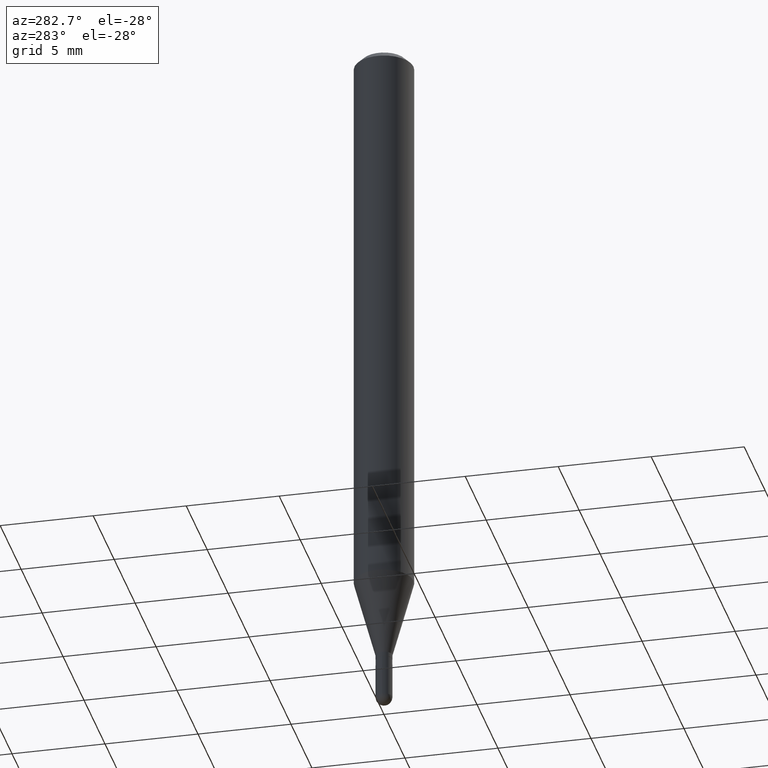
[diagram: clean part render]
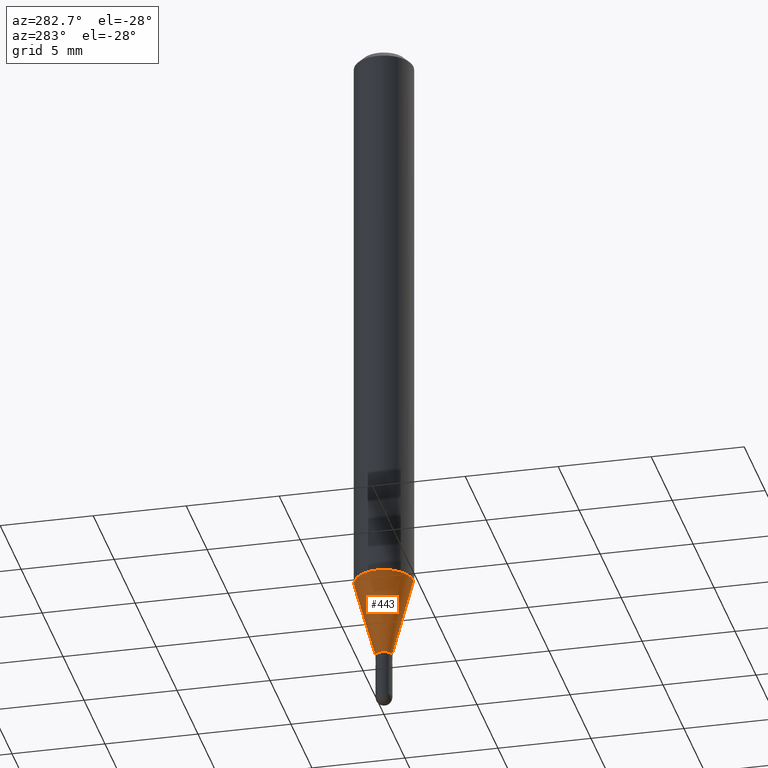
[diagram: same view with one face highlighted and labeled with its STEP entity id]
A machine part, auxiliary view. The second image highlights one B-rep face of the part: STEP entity #443.
In plain terms, the highlighted conical surface has half-angle 15 deg.
Its self-contained STEP definition (entity closure, byte-faithful):
#15 = DIRECTION ( 'NONE',  ( -2.445477258460488416E-29, 3.491469234703768188E-15, 1.000000000000000000 ) ) ;
#23 = LINE ( 'NONE', #151, #429 ) ;
#53 = CARTESIAN_POINT ( 'NONE',  ( 3.386986002967776783E-29, -4.835684890064719357E-15, -1.385000000000000009 ) ) ;
#57 = DIRECTION ( 'NONE',  ( -6.982962677686265922E-15, -1.000000000000000000, 4.370956789862821150E-15 ) ) ;
#82 = CARTESIAN_POINT ( 'NONE',  ( -4.364351673553618899E-16, -0.06250000000000427436, -1.217057713659400742 ) ) ;
#86 = CARTESIAN_POINT ( 'NONE',  ( 2.976286960987981903E-29, -4.249319564100705935E-15, -1.217057713659400964 ) ) ;
#99 = CARTESIAN_POINT ( 'NONE',  ( 3.386986002967776783E-29, -4.835684890064719357E-15, -1.385000000000000009 ) ) ;
#114 = EDGE_CURVE ( 'NONE', #221, #468, #23, .T. ) ;
#127 = CIRCLE ( 'NONE', #141, 0.06250000000000000000 ) ;
#132 = CARTESIAN_POINT ( 'NONE',  ( 2.842170943040716840E-16, 0.01749999999999508893, -1.385000000000000009 ) ) ;
#141 = AXIS2_PLACEMENT_3D ( 'NONE', #86, #408, #57 ) ;
#151 = CARTESIAN_POINT ( 'NONE',  ( -1.222018468594752731E-16, -0.01750000000000476175, -1.385000000000000009 ) ) ;
#166 = VERTEX_POINT ( 'NONE', #187 ) ;
#172 = ORIENTED_EDGE ( 'NONE', *, *, #432, .F. ) ;
#178 = ORIENTED_EDGE ( 'NONE', *, *, #349, .F. ) ;
#184 = DIRECTION ( 'NONE',  ( -2.445477258460488416E-29, 3.491469234703768188E-15, 1.000000000000000000 ) ) ;
#187 = CARTESIAN_POINT ( 'NONE',  ( 4.440892098500920998E-16, 0.06249999999999572564, -1.217057713659401186 ) ) ;
#221 = VERTEX_POINT ( 'NONE', #419 ) ;
#223 = ORIENTED_EDGE ( 'NONE', *, *, #114, .T. ) ;
#255 = DIRECTION ( 'NONE',  ( -6.982962677686265133E-15, -1.000000000000000000, 0.000000000000000000 ) ) ;
#263 = DIRECTION ( 'NONE',  ( -6.982962677686265133E-15, -1.000000000000000000, 0.000000000000000000 ) ) ;
#272 = CIRCLE ( 'NONE', #283, 0.01749999999999992534 ) ;
#283 = AXIS2_PLACEMENT_3D ( 'NONE', #53, #15, #255 ) ;
#302 = FACE_OUTER_BOUND ( 'NONE', #356, .T. ) ;
#310 = CONICAL_SURFACE ( 'NONE', #424, 0.01749999999999992534, 0.2617993877991502960 ) ;
#329 = LINE ( 'NONE', #338, #371 ) ;
#338 = CARTESIAN_POINT ( 'NONE',  ( 1.243449787580508491E-16, 0.01749999999999508893, -1.385000000000000009 ) ) ;
#349 = EDGE_CURVE ( 'NONE', #166, #468, #127, .T. ) ;
#353 = EDGE_CURVE ( 'NONE', #475, #221, #272, .T. ) ;
#356 = EDGE_LOOP ( 'NONE', ( #172, #441, #223, #178 ) ) ;
#371 = VECTOR ( 'NONE', #498, 39.37007874015748143 ) ;
#408 = DIRECTION ( 'NONE',  ( -2.445477258460488416E-29, 3.491469234703768188E-15, 1.000000000000000000 ) ) ;
#410 = DIRECTION ( 'NONE',  ( -1.807323732225330534E-15, -0.2588190451025182415, 0.9659258262890689783 ) ) ;
#419 = CARTESIAN_POINT ( 'NONE',  ( -1.222018468594752731E-16, -0.01750000000000476175, -1.385000000000000009 ) ) ;
#424 = AXIS2_PLACEMENT_3D ( 'NONE', #99, #184, #263 ) ;
#429 = VECTOR ( 'NONE', #410, 39.37007874015748143 ) ;
#432 = EDGE_CURVE ( 'NONE', #475, #166, #329, .T. ) ;
#441 = ORIENTED_EDGE ( 'NONE', *, *, #353, .T. ) ;
#443 = ADVANCED_FACE ( 'NONE', ( #302 ), #310, .T. ) ;
#468 = VERTEX_POINT ( 'NONE', #82 ) ;
#475 = VERTEX_POINT ( 'NONE', #132 ) ;
#498 = DIRECTION ( 'NONE',  ( 1.839019923739600710E-15, 0.2588190451025250138, 0.9659258262890670910 ) ) ;